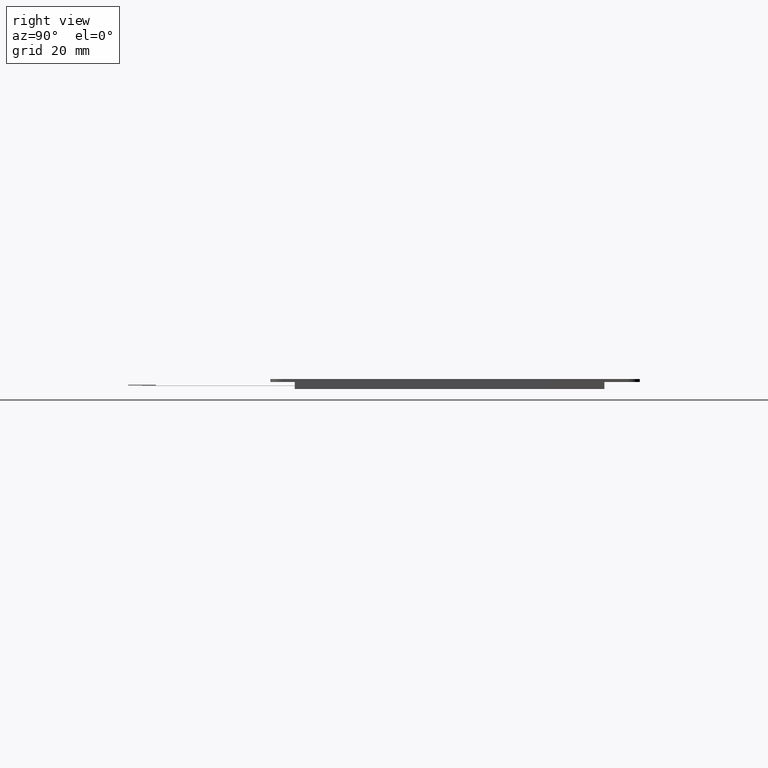
[diagram: clean part render]
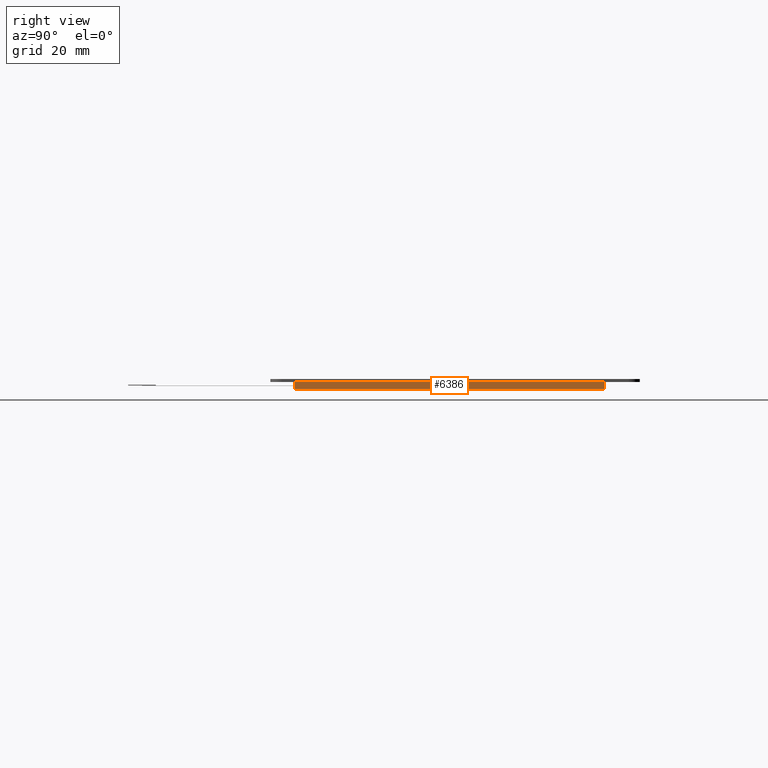
[diagram: same view with one face highlighted and labeled with its STEP entity id]
A machine part, right view. The second image highlights one B-rep face of the part: STEP entity #6386.
In plain terms, the highlighted planar face has unit normal (1, 0, 0).
Its self-contained STEP definition (entity closure, byte-faithful):
#342=FACE_OUTER_BOUND('',#654,.T.);
#654=EDGE_LOOP('',(#5735,#5736,#5737,#5738));
#680=LINE('',#8333,#1568);
#1535=LINE('',#10062,#2423);
#1536=LINE('',#10065,#2424);
#1537=LINE('',#10066,#2425);
#1568=VECTOR('',#6784,10.);
#2423=VECTOR('',#8245,10.);
#2424=VECTOR('',#8248,10.);
#2425=VECTOR('',#8249,10.);
#2477=VERTEX_POINT('',#8330);
#2478=VERTEX_POINT('',#8332);
#3049=VERTEX_POINT('',#10060);
#3050=VERTEX_POINT('',#10064);
#3084=EDGE_CURVE('',#2477,#2478,#680,.T.);
#3947=EDGE_CURVE('',#2477,#3049,#1535,.T.);
#3948=EDGE_CURVE('',#3050,#3049,#1536,.T.);
#3949=EDGE_CURVE('',#2478,#3050,#1537,.T.);
#5735=ORIENTED_EDGE('',*,*,#3084,.F.);
#5736=ORIENTED_EDGE('',*,*,#3947,.T.);
#5737=ORIENTED_EDGE('',*,*,#3948,.F.);
#5738=ORIENTED_EDGE('',*,*,#3949,.F.);
#6062=PLANE('',#6732);
#6386=ADVANCED_FACE('',(#342),#6062,.T.);
#6732=AXIS2_PLACEMENT_3D('',#10063,#8246,#8247);
#6784=DIRECTION('',(0.,1.,0.));
#8245=DIRECTION('',(0.,0.,-1.));
#8246=DIRECTION('center_axis',(1.,0.,0.));
#8247=DIRECTION('ref_axis',(0.,-1.,0.));
#8248=DIRECTION('',(0.,-1.,0.));
#8249=DIRECTION('',(0.,0.,-1.));
#8330=CARTESIAN_POINT('',(84.3,-57.72,0.));
#8332=CARTESIAN_POINT('',(84.3,53.68,0.));
#8333=CARTESIAN_POINT('',(84.3,-57.72,0.));
#10060=CARTESIAN_POINT('',(84.3,-57.72,-2.5));
#10062=CARTESIAN_POINT('',(84.3,-57.72,0.));
#10063=CARTESIAN_POINT('Origin',(84.3,53.68,0.));
#10064=CARTESIAN_POINT('',(84.3,53.68,-2.5));
#10065=CARTESIAN_POINT('',(84.3,-57.72,-2.5));
#10066=CARTESIAN_POINT('',(84.3,53.68,0.));